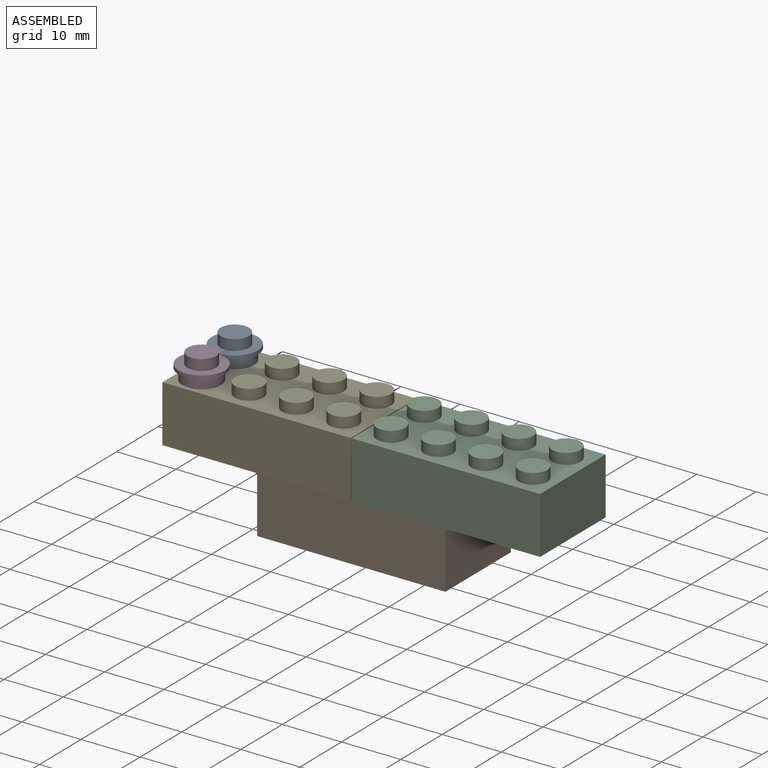
[diagram: assembled view]
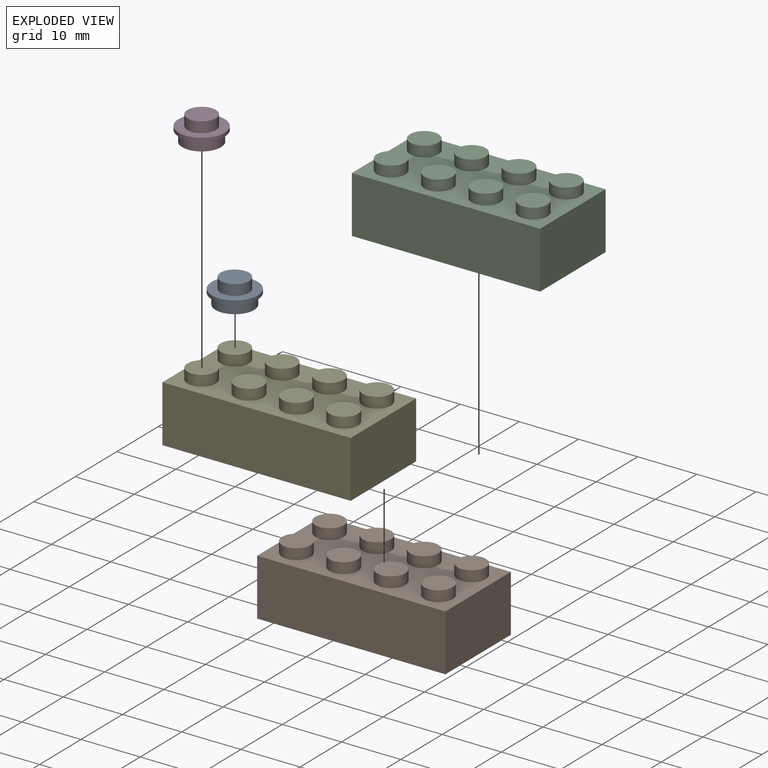
[diagram: exploded view]
GUIDED TOUR — MATED ASSEMBLY (Onshape document 03a3a429c59b983fdd23e192, AutoMate assembly 03a3a429c59b983fdd23e192_4d66a591bb6e845848489570_5a818843fedc0d34564b9e6c_default)

This assembly has 5 components, labeled P0..P4 below (a component is one placed occurrence of a part; the same part can appear more than once), held together by 10 mates. A mate is a constraint between two components; its type names the relative motion it leaves free:
  CYLINDRICAL — leaves both rotation about and translation along the listed axis free,
  PLANAR — leaves sliding in the plane through the listed point (normal = the listed direction) and rotation about that normal free.
Axis/direction vectors are unit vectors and 'through' points are millimeter coordinates, both in the assembly's world frame.

MATES
  1. PLANAR "Planar 2": P1 <-> P2, direction (0.000, 0.000, 1.000) through (104.46, 2.44, 15.19) mm
  2. CYLINDRICAL "Cylindrical 3": P4 <-> P3, axis (0.000, 0.000, -1.000) through (76.46, -1.56, 25.69) mm
  3. CYLINDRICAL "Cylindrical 5": P4 <-> P1, axis (0.000, 0.000, -1.000) through (92.46, -1.56, 25.69) mm
  4. CYLINDRICAL "Cylindrical 4": P4 <-> P0, axis (0.000, 0.000, -1.000) through (76.46, 6.44, 25.69) mm
  5. CYLINDRICAL "Cylindrical 1": P1 <-> P4, axis (0.000, 0.000, -1.000) through (100.46, -1.56, 15.19) mm
  6. PLANAR "Planar 3": P3 <-> P4, direction (0.000, 0.000, -1.000) through (76.46, -1.56, 26.59) mm
  7. PLANAR "Planar 1": P1 <-> P4, direction (0.000, 0.000, 1.000) through (92.46, 6.44, 15.19) mm
  8. CYLINDRICAL "Cylindrical 6": P1 <-> P2, axis (0.000, 0.000, -1.000) through (108.46, -1.56, 16.09) mm
  9. CYLINDRICAL "Cylindrical 2": P2 <-> P1, axis (0.000, 0.000, -1.000) through (116.46, -1.56, 24.79) mm
  10. PLANAR "Planar 4": P4 <-> P0, direction (0.000, 0.000, 1.000) through (76.46, 6.44, 26.59) mm

ASSEMBLY ORDER
  1. P4 — the base component [order heuristic]
  2. P0 — core [order heuristic]
  3. P2 [order verified]
  4. P3 — core [order heuristic]
  5. P1 — core [order heuristic]
Order-tag legend:
  [order verified] — this step's position reverses a verified removal order: the component was checked to insert without passing through the ones already placed.
  [order heuristic] — the first 4 components form the assembly's core: parts whose collision-free extraction could not be verified, listed in mate-graph order.

Of the 5 components, 2 carry the full construction recipe — the FeatureScript program that regenerates the part's solid from scratch; the rest are supplied as boundary geometry only.
Each toured component is shown spotlighted twice — in the assembled view, then in the exploded view, where a leader line traces a displaced component back to its assembled socket (saturated green if recipe-attached, orange if geometry-only; every other component desaturated gray) — followed by its recipe or geometry summary and the mates that hold it.
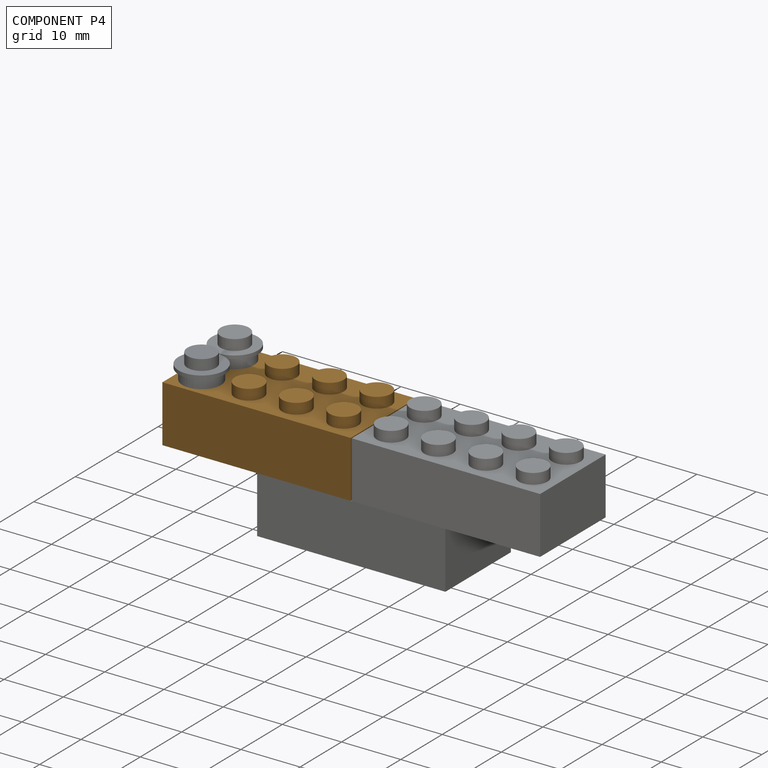
[diagram: component P4 — assembled]
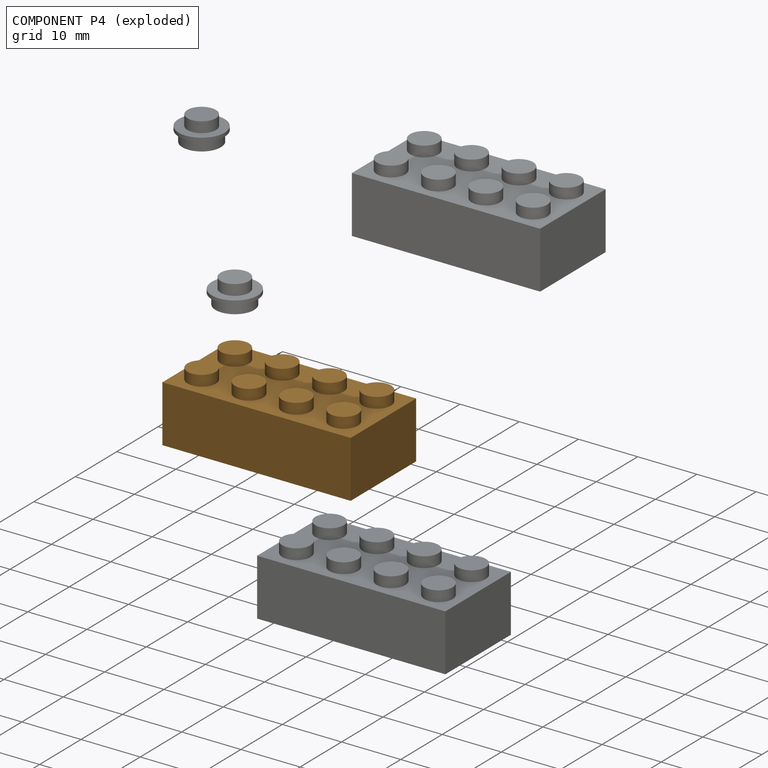
[diagram: component P4 — exploded]
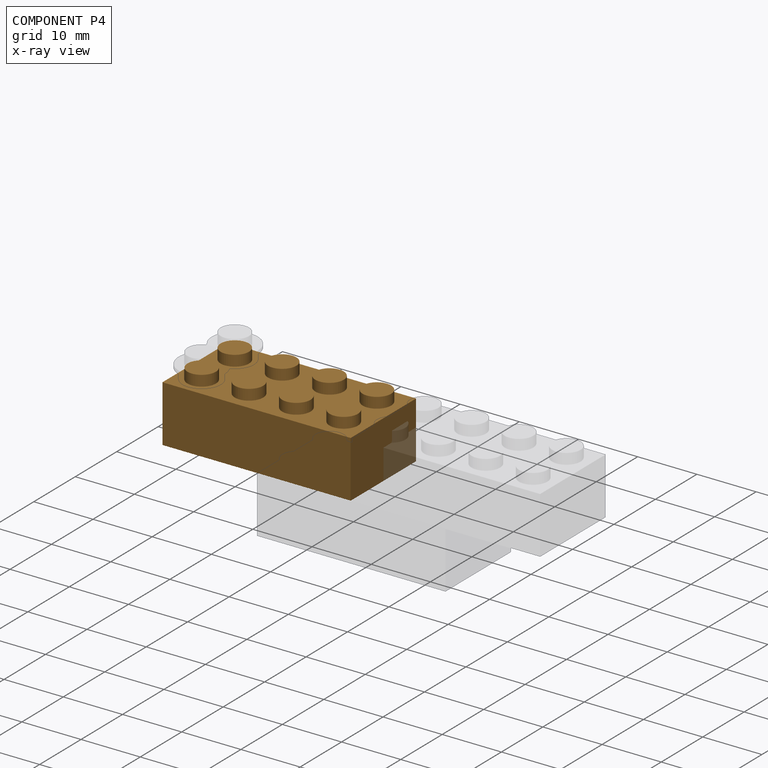
[diagram: component P4 — x-ray view]
COMPONENT P4 — geometry summary (no construction recipe available for this part):
  bounding box: 31.8 x 15.8 x 11.4 mm
  B-rep topology: 1 solid, 55 faces, 180 edges
  volume: 1851 mm^3 (32% of its bounding box)
  symmetry: 2-fold rotationally symmetric about the z axis; mirror-symmetric across its x mid-plane, y mid-plane
Held by: CYLINDRICAL mate "Cylindrical 3" to P3; CYLINDRICAL mate "Cylindrical 5" to P1; CYLINDRICAL mate "Cylindrical 4" to P0; CYLINDRICAL mate "Cylindrical 1" to P1; PLANAR mate "Planar 3" to P3; PLANAR mate "Planar 1" to P1; PLANAR mate "Planar 4" to P0.
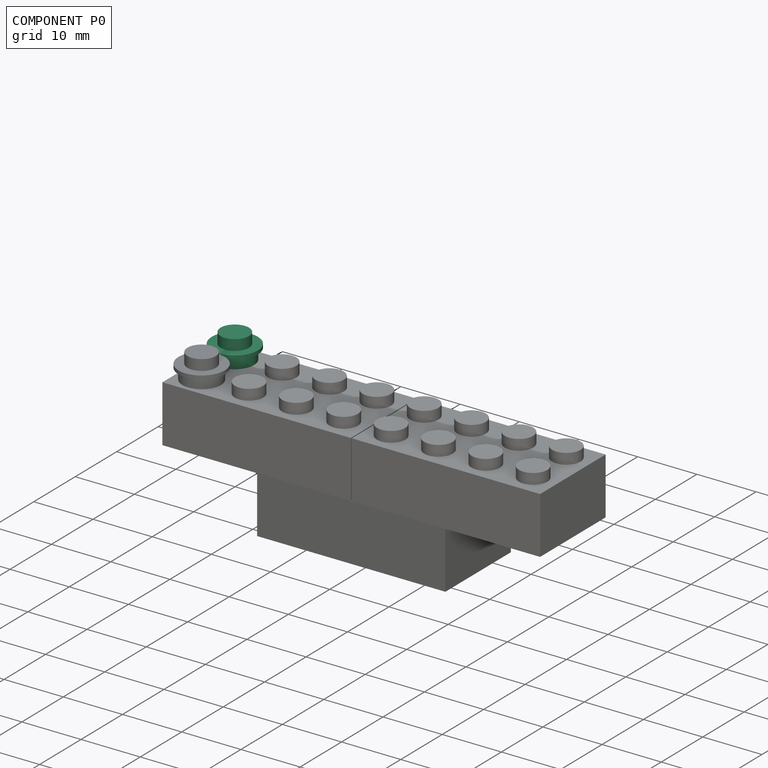
[diagram: component P0 — assembled]
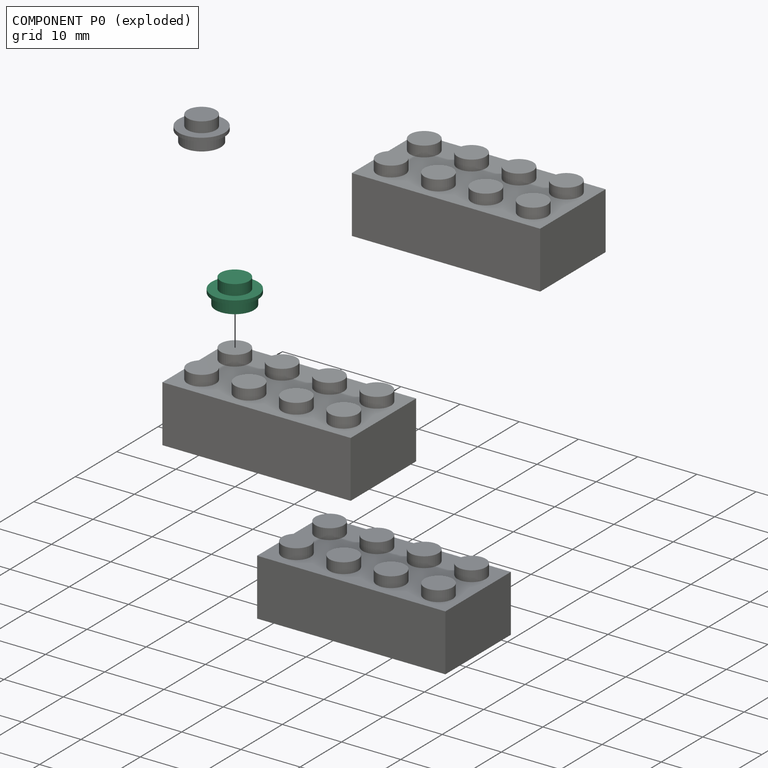
[diagram: component P0 — exploded]
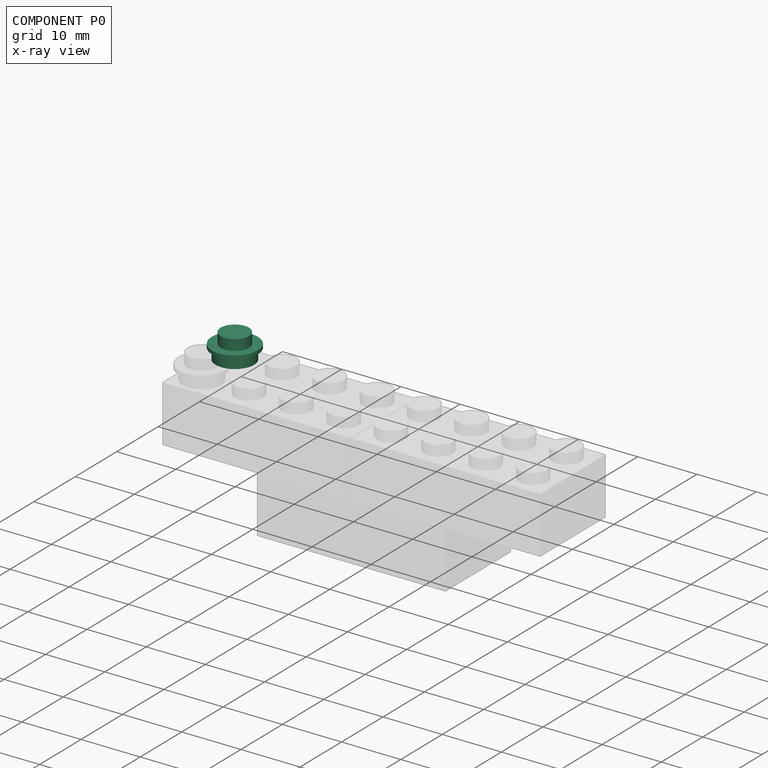
[diagram: component P0 — x-ray view]
COMPONENT P0 — recipe-attached (CADFS 00157574, mesh-verified: the recipe's output STEP matches this component's geometry to below the mesh-comparison resolution (tessellation chordal tolerance ~0.0177 mm)).
Held by: CYLINDRICAL mate "Cylindrical 4" to P4; PLANAR mate "Planar 4" to P4.
Construction recipe (FeatureScript — the CAD program that rebuilds this solid; sketch coordinates are in the units given by the * unit suffixes, e.g. mm):

FeatureScript 1511;
import(path : "onshape/std/geometry.fs", version : "1511.0");
import(path : "onshape/std/common.fs", version : "1511.0");
const mm = millimeter;
const VERTEX = EntityType.VERTEX;
const EDGE = EntityType.EDGE;
const FACE = EntityType.FACE;
const BODY = EntityType.BODY;
function v(x, y){return vector(x, y);}
function OD(order){return orderDisambiguation(order);}
function OSD(set){return originalSetDisambiguation(set);}
function TD(topology){return topologyDisambiguation(topology);}
function TDD(query){return trueDependencyDisambiguation(query);}
function sQuery(a, b, c) {return sketchEntityQuery(a, b, c);}

annotation { "Feature Type Name" : "Feature", "Feature Type Description" : "" }
export const myFeature = defineFeature(function(context is Context, id is Id, definition is map)
    precondition{}
    {
        {
            var Q0;
            Q0=qCreatedBy(makeId("Front.planeOp"),FACE);
            var sketch = newSketch(context, id + "F0", { "sketchPlane" : qUnion([Q0])});
            skLineSegment(sketch, "E0", {"start": v(0, 50) * mm, "end": v(0, -50) * mm, "construction": true});
            skLineSegment(sketch, "E1", {"start": v(0, 0) * mm, "end": v(2.4, 0) * mm});
            skLineSegment(sketch, "E2", {"start": v(2.4, 0) * mm, "end": v(2.4, -1.8) * mm});
            skLineSegment(sketch, "E3", {"start": v(2.4, -1.8) * mm, "end": v(3.9, -1.8) * mm});
            skLineSegment(sketch, "E4", {"start": v(3.9, -1.8) * mm, "end": v(3.9, -2.4) * mm});
            skLineSegment(sketch, "E5", {"start": v(3.9, -2.4) * mm, "end": v(3.25, -2.4) * mm});
            skLineSegment(sketch, "E6", {"start": v(3.25, -2.4) * mm, "end": v(3.25, -4.2) * mm});
            skLineSegment(sketch, "E7", {"start": v(3.25, -4.2) * mm, "end": v(2.45, -4.2) * mm});
            skLineSegment(sketch, "E8", {"start": v(2.45, -4.2) * mm, "end": v(2.45, -2.4) * mm});
            skLineSegment(sketch, "E9", {"start": v(2.45, -2.4) * mm, "end": v(0, -2.4) * mm});
            skLineSegment(sketch, "E10", {"start": v(0, -2.4) * mm, "end": v(0, 0) * mm});
            skSolve(sketch);
        }
        {
            var Q0;
            Q0 = qSketchRegion(id + "F0", true);
            var Q1;
            Q1=sQuery(id+"F0.wireOp",EDGE,"E0");
            revolve(context, id + "F1", {"entities" : qUnion([Q0]), "axis" : qUnion([Q1]), "revolveType" : RevolveType.FULL});
        }
    });
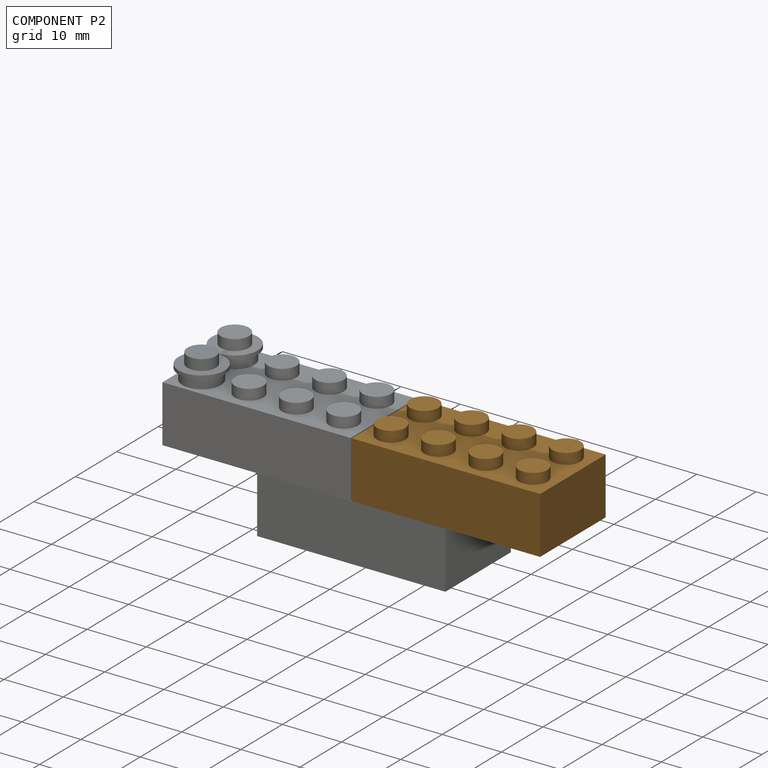
[diagram: component P2 — assembled]
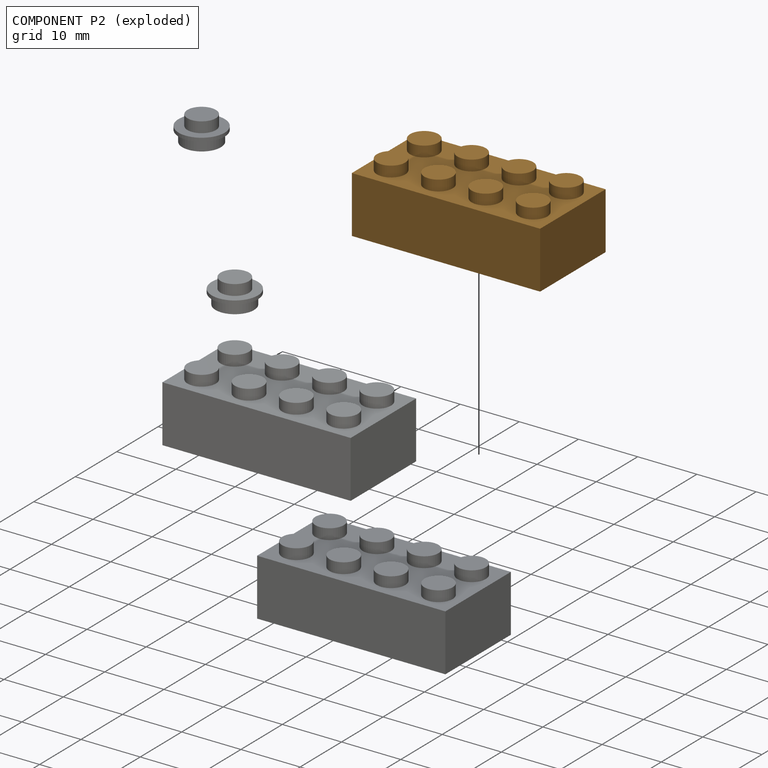
[diagram: component P2 — exploded]
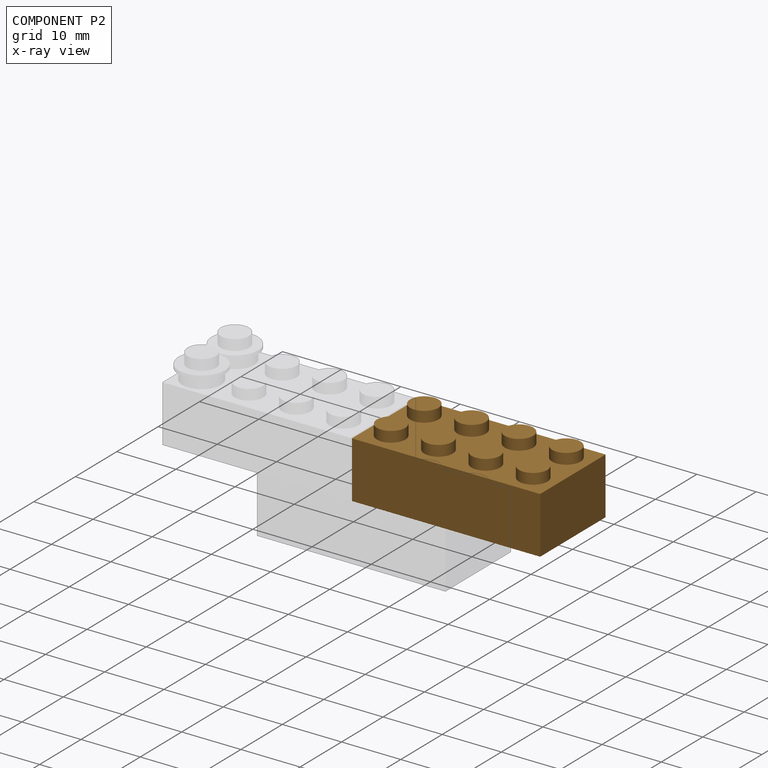
[diagram: component P2 — x-ray view]
COMPONENT P2 — geometry summary (no construction recipe available for this part):
  bounding box: 31.8 x 15.8 x 11.4 mm
  B-rep topology: 1 solid, 55 faces, 180 edges
  volume: 1851 mm^3 (32% of its bounding box)
  symmetry: 2-fold rotationally symmetric about the z axis; mirror-symmetric across its x mid-plane, y mid-plane
Held by: PLANAR mate "Planar 2" to P1; CYLINDRICAL mate "Cylindrical 6" to P1; CYLINDRICAL mate "Cylindrical 2" to P1.
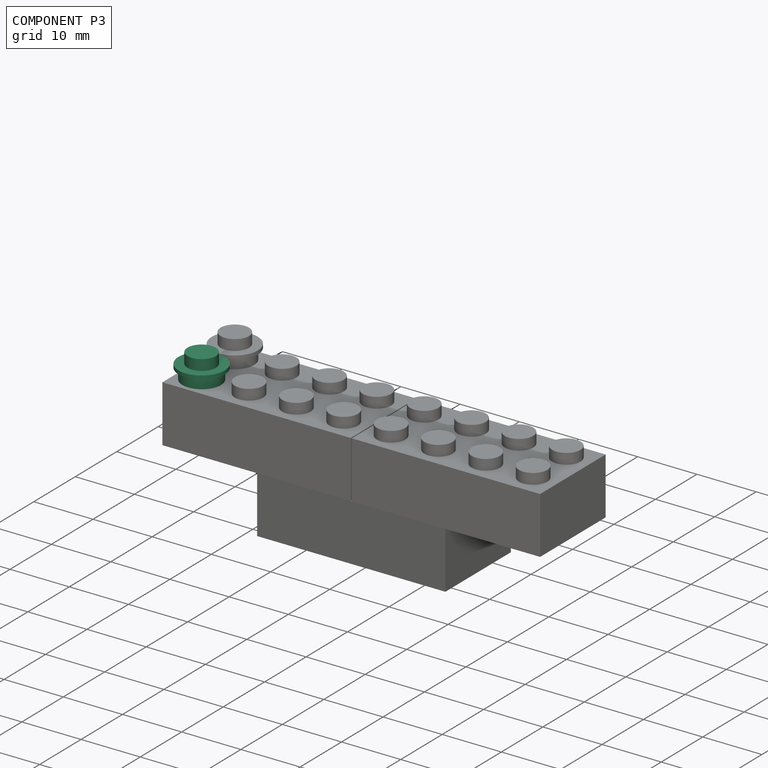
[diagram: component P3 — assembled]
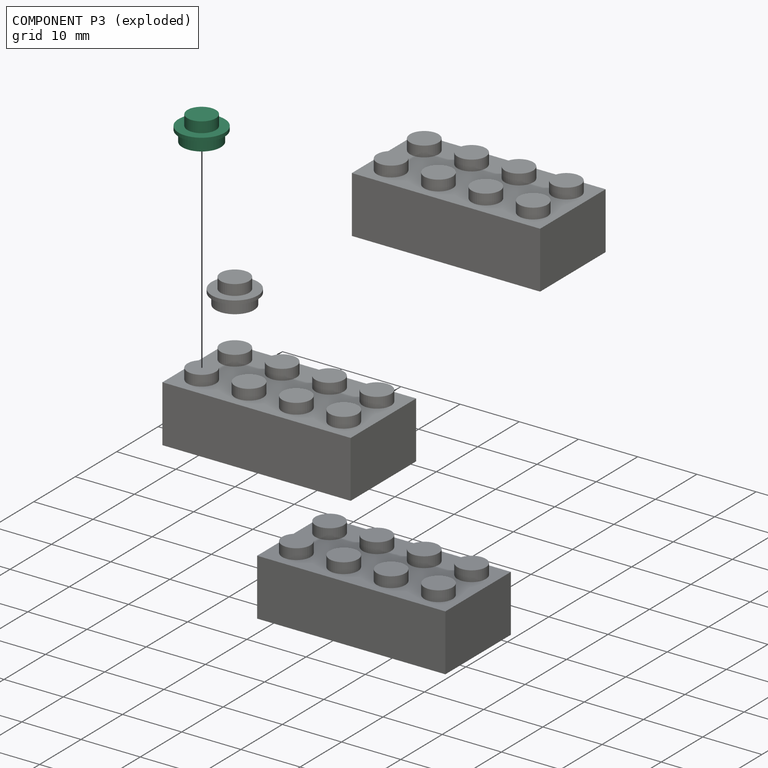
[diagram: component P3 — exploded]
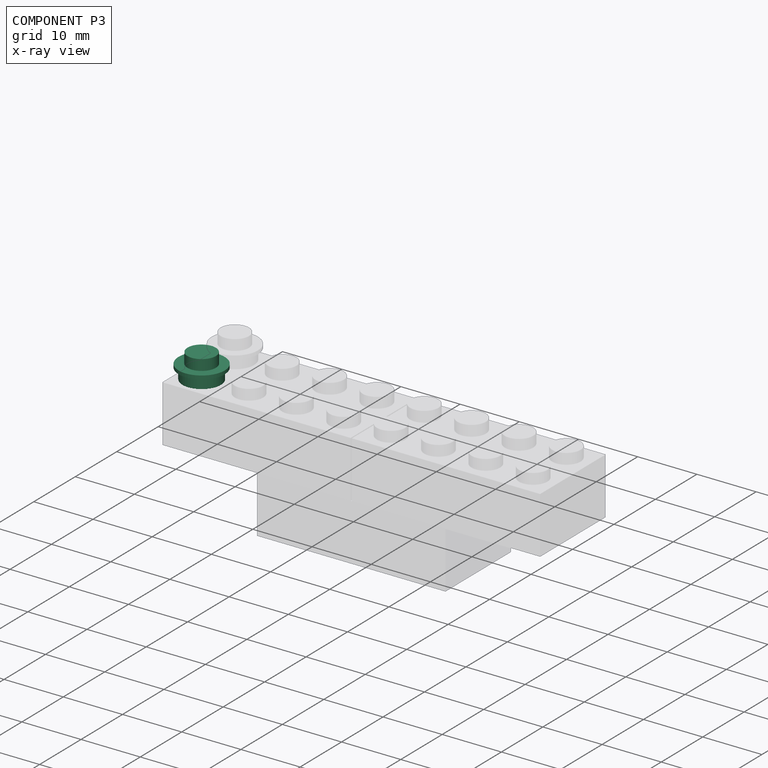
[diagram: component P3 — x-ray view]
COMPONENT P3 — same part as P0 (CADFS 00157574); its construction recipe is shown at P0.
Held by: CYLINDRICAL mate "Cylindrical 3" to P4; PLANAR mate "Planar 3" to P4.
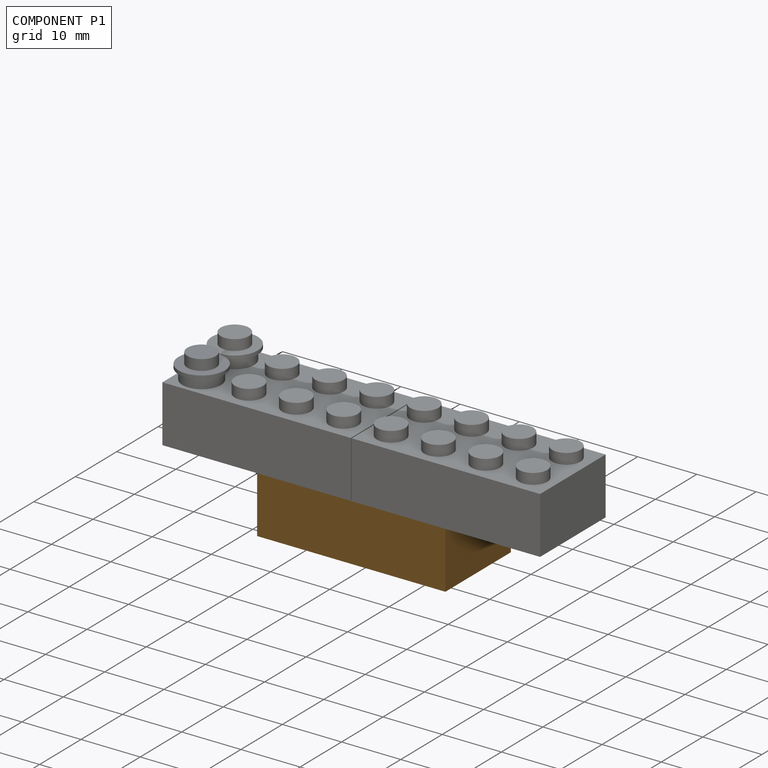
[diagram: component P1 — assembled]
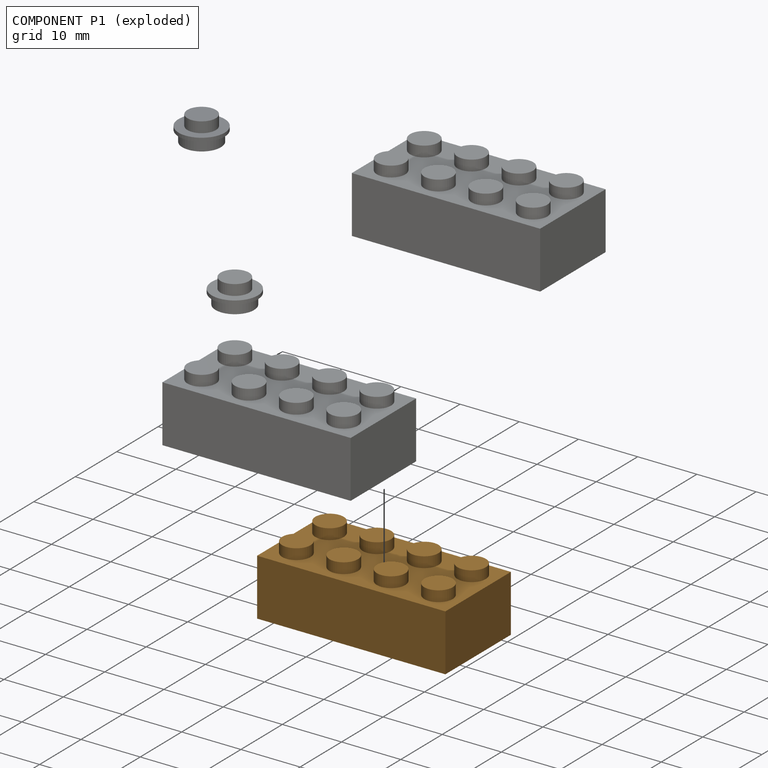
[diagram: component P1 — exploded]
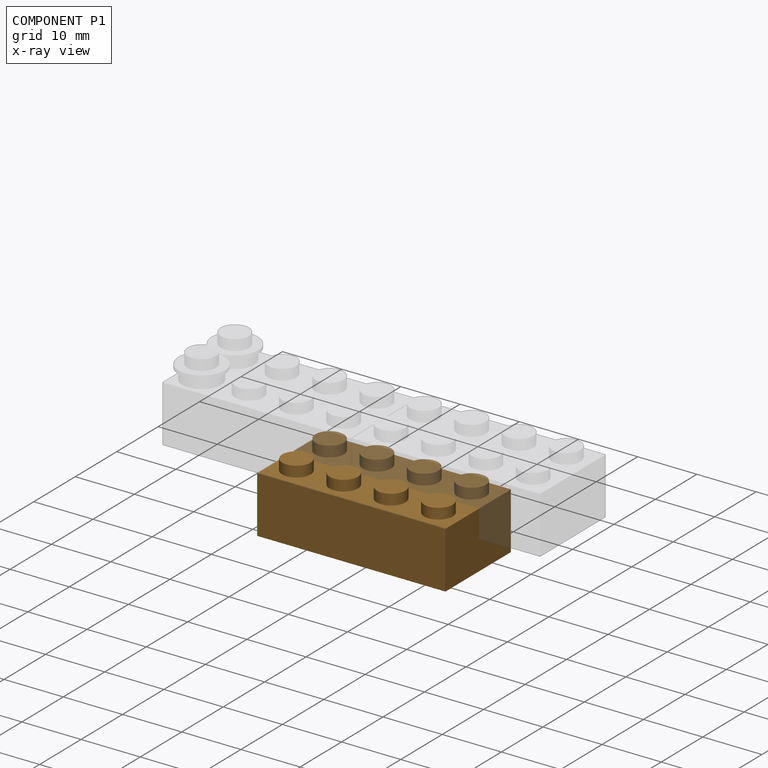
[diagram: component P1 — x-ray view]
COMPONENT P1 — geometry summary (no construction recipe available for this part):
  bounding box: 31.8 x 15.8 x 11.4 mm
  B-rep topology: 1 solid, 55 faces, 180 edges
  volume: 1851 mm^3 (32% of its bounding box)
  symmetry: 2-fold rotationally symmetric about the z axis; mirror-symmetric across its x mid-plane, y mid-plane
Held by: PLANAR mate "Planar 2" to P2; CYLINDRICAL mate "Cylindrical 5" to P4; CYLINDRICAL mate "Cylindrical 1" to P4; PLANAR mate "Planar 1" to P4; CYLINDRICAL mate "Cylindrical 6" to P2; CYLINDRICAL mate "Cylindrical 2" to P2.
PROVENANCE & LICENSES
Assembly (occurrences, transforms, mates, per-part STEP geometry): AutoMate dataset, Zenodo record 7776208, CC0.
Construction recipes: CADFS (HuggingFace VladPyatov/CADFS, CC-BY-4.0, layered over the ABC dataset), FeatureScript reconstruction programs keyed by ABC model id.
Join: ABC meta listings map ABC model id -> Onshape documentId; within a shared document, parts are matched by geometric signature (bounding-box dims + volume at 0.1% relative tolerance, exact B-rep face/solid counts).
Verification: 2 of this assembly's 5 components carry a recipe attachment, and every attachment is mesh-verified: the CADFS STEP and the AutoMate member STEP were compared as meshes in their shared local frame (symmetric sampled-point-to-mesh distance); worst across the 2 attachments: below the mesh-comparison resolution (tessellation chordal tolerance ~0.0177 mm) on a 12 mm part.
Renders: orthographic iso camera (az 35 / el 25); the floor grid conveys scale (grid pitch printed in each image; no ruler). In the exploded view each component is displaced by its stored offset vector: the offsets alone carry the explosion direction (mate normal/axis signs are not orientation cues and do not encode it), and separation distances are assigned per mate-chain, not proportionally to assembly-order depth.
